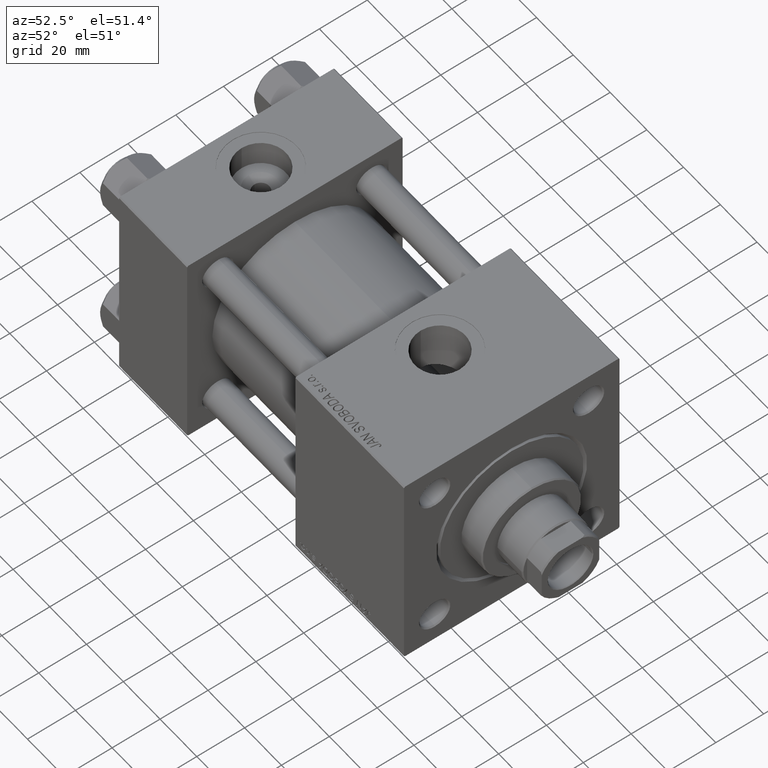
[diagram: clean part render]
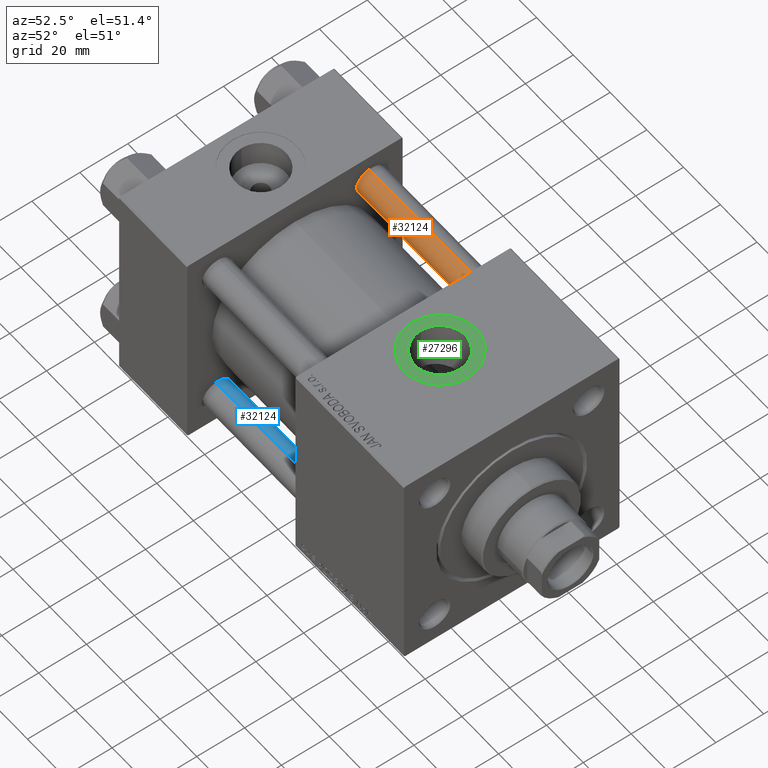
[diagram: same view with three faces highlighted in distinct colors, each labeled with its STEP entity id]
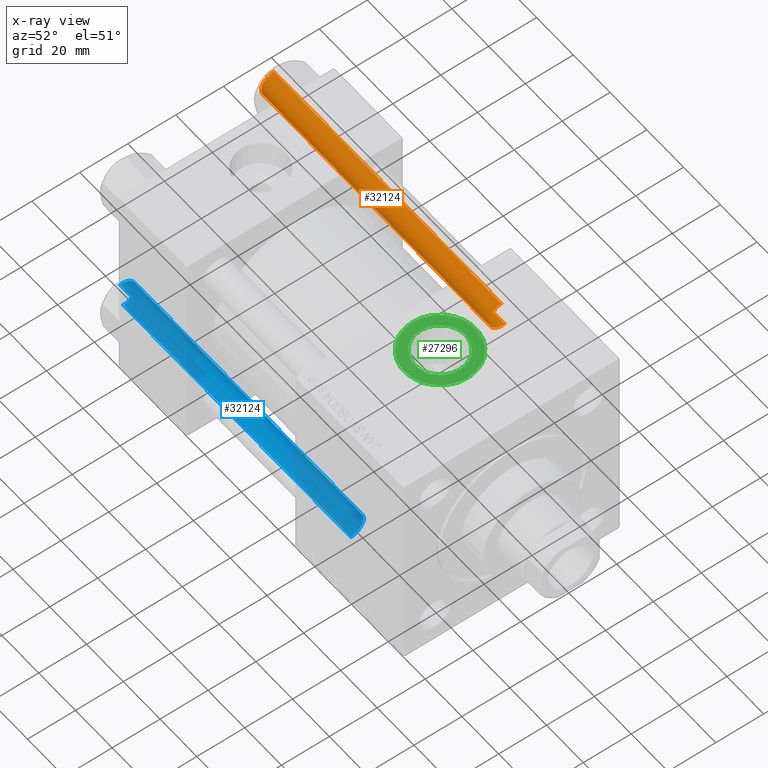
[diagram: x-ray of the same camera — body ghosted, the three highlighted faces saturated]
A machine part, auxiliary view with three faces highlighted in distinct colors.
The next image is the same camera in x-ray (body ghosted, the three faces saturated) — at least one of them is partly hidden behind the body in this view.
Their STEP definitions:

[orange] entity #32124 — the highlighted cylindrical surface (edge-blend (fillet) strip) has radius 6 mm, axis along (-1, 0, 0).
#3889 = CARTESIAN_POINT ( 'NONE',  ( 6.000000000000000888, 7.347880794884120722E-16, 125.0000000000000000 ) ) ;
#3957 = FACE_OUTER_BOUND ( 'NONE', #28924, .T. ) ;
#4647 = CARTESIAN_POINT ( 'NONE',  ( -6.000000000000000888, 0.000000000000000000, 0.4999999999999865663 ) ) ;
#4950 = VERTEX_POINT ( 'NONE', #28180 ) ;
#8040 = ORIENTED_EDGE ( 'NONE', *, *, #19581, .T. ) ;
#8315 = VERTEX_POINT ( 'NONE', #4647 ) ;
#9021 = DIRECTION ( 'NONE',  ( -0.000000000000000000, -0.000000000000000000, 1.000000000000000000 ) ) ;
#9540 = DIRECTION ( 'NONE',  ( 1.000000000000000000, 0.000000000000000000, 0.000000000000000000 ) ) ;
#10227 = CARTESIAN_POINT ( 'NONE',  ( 6.000000000000000888, 7.347880794884120722E-16, 124.5000000000000000 ) ) ;
#12302 = LINE ( 'NONE', #3889, #45134 ) ;
#13304 = EDGE_CURVE ( 'NONE', #22390, #4950, #28891, .T. ) ;
#16550 = AXIS2_PLACEMENT_3D ( 'NONE', #37396, #9021, #9540 ) ;
#19581 = EDGE_CURVE ( 'NONE', #8315, #32826, #24945, .T. ) ;
#20001 = DIRECTION ( 'NONE',  ( -1.000000000000000000, 0.000000000000000000, 0.000000000000000000 ) ) ;
#20315 = DIRECTION ( 'NONE',  ( 1.000000000000000000, 0.000000000000000000, 0.000000000000000000 ) ) ;
#22390 = VERTEX_POINT ( 'NONE', #10227 ) ;
#22817 = CARTESIAN_POINT ( 'NONE',  ( -6.000000000000000888, 0.000000000000000000, 125.0000000000000000 ) ) ;
#24945 = CIRCLE ( 'NONE', #16550, 6.000000000000000888 ) ;
#28180 = CARTESIAN_POINT ( 'NONE',  ( -6.000000000000000888, 0.000000000000000000, 124.5000000000000000 ) ) ;
#28891 = CIRCLE ( 'NONE', #33101, 6.000000000000000888 ) ;
#28924 = EDGE_LOOP ( 'NONE', ( #47751, #44039, #34297, #8040 ) ) ;
#29401 = EDGE_CURVE ( 'NONE', #4950, #8315, #30708, .T. ) ;
#30708 = LINE ( 'NONE', #22817, #34786 ) ;
#31761 = DIRECTION ( 'NONE',  ( -0.000000000000000000, -0.000000000000000000, -1.000000000000000000 ) ) ;
#32085 = CARTESIAN_POINT ( 'NONE',  ( 6.000000000000000888, 7.347880794884120722E-16, 0.4999999999999865663 ) ) ;
#32124 = ADVANCED_FACE ( 'NONE', ( #3957 ), #44680, .T. ) ;
#32664 = DIRECTION ( 'NONE',  ( 0.000000000000000000, 0.000000000000000000, -1.000000000000000000 ) ) ;
#32826 = VERTEX_POINT ( 'NONE', #32085 ) ;
#33101 = AXIS2_PLACEMENT_3D ( 'NONE', #40273, #32664, #20315 ) ;
#34036 = AXIS2_PLACEMENT_3D ( 'NONE', #40747, #49152, #20001 ) ;
#34297 = ORIENTED_EDGE ( 'NONE', *, *, #29401, .T. ) ;
#34786 = VECTOR ( 'NONE', #43042, 1000.000000000000000 ) ;
#37396 = CARTESIAN_POINT ( 'NONE',  ( 0.000000000000000000, 0.000000000000000000, 0.4999999999999865663 ) ) ;
#40273 = CARTESIAN_POINT ( 'NONE',  ( 0.000000000000000000, 0.000000000000000000, 124.5000000000000000 ) ) ;
#40747 = CARTESIAN_POINT ( 'NONE',  ( 0.000000000000000000, 0.000000000000000000, 125.0000000000000000 ) ) ;
#40952 = EDGE_CURVE ( 'NONE', #22390, #32826, #12302, .T. ) ;
#43042 = DIRECTION ( 'NONE',  ( -0.000000000000000000, -0.000000000000000000, -1.000000000000000000 ) ) ;
#44039 = ORIENTED_EDGE ( 'NONE', *, *, #13304, .T. ) ;
#44680 = CYLINDRICAL_SURFACE ( 'NONE', #34036, 6.000000000000000888 ) ;
#45134 = VECTOR ( 'NONE', #31761, 1000.000000000000000 ) ;
#47751 = ORIENTED_EDGE ( 'NONE', *, *, #40952, .F. ) ;
#49152 = DIRECTION ( 'NONE',  ( -0.000000000000000000, -0.000000000000000000, -1.000000000000000000 ) ) ;

[blue] entity #32124 — the highlighted cylindrical surface (edge-blend (fillet) strip) has radius 6 mm, axis along (-1, -0, -0).
#3889 = CARTESIAN_POINT ( 'NONE',  ( 6.000000000000000888, 7.347880794884120722E-16, 125.0000000000000000 ) ) ;
#3957 = FACE_OUTER_BOUND ( 'NONE', #28924, .T. ) ;
#4647 = CARTESIAN_POINT ( 'NONE',  ( -6.000000000000000888, 0.000000000000000000, 0.4999999999999865663 ) ) ;
#4950 = VERTEX_POINT ( 'NONE', #28180 ) ;
#8040 = ORIENTED_EDGE ( 'NONE', *, *, #19581, .T. ) ;
#8315 = VERTEX_POINT ( 'NONE', #4647 ) ;
#9021 = DIRECTION ( 'NONE',  ( -0.000000000000000000, -0.000000000000000000, 1.000000000000000000 ) ) ;
#9540 = DIRECTION ( 'NONE',  ( 1.000000000000000000, 0.000000000000000000, 0.000000000000000000 ) ) ;
#10227 = CARTESIAN_POINT ( 'NONE',  ( 6.000000000000000888, 7.347880794884120722E-16, 124.5000000000000000 ) ) ;
#12302 = LINE ( 'NONE', #3889, #45134 ) ;
#13304 = EDGE_CURVE ( 'NONE', #22390, #4950, #28891, .T. ) ;
#16550 = AXIS2_PLACEMENT_3D ( 'NONE', #37396, #9021, #9540 ) ;
#19581 = EDGE_CURVE ( 'NONE', #8315, #32826, #24945, .T. ) ;
#20001 = DIRECTION ( 'NONE',  ( -1.000000000000000000, 0.000000000000000000, 0.000000000000000000 ) ) ;
#20315 = DIRECTION ( 'NONE',  ( 1.000000000000000000, 0.000000000000000000, 0.000000000000000000 ) ) ;
#22390 = VERTEX_POINT ( 'NONE', #10227 ) ;
#22817 = CARTESIAN_POINT ( 'NONE',  ( -6.000000000000000888, 0.000000000000000000, 125.0000000000000000 ) ) ;
#24945 = CIRCLE ( 'NONE', #16550, 6.000000000000000888 ) ;
#28180 = CARTESIAN_POINT ( 'NONE',  ( -6.000000000000000888, 0.000000000000000000, 124.5000000000000000 ) ) ;
#28891 = CIRCLE ( 'NONE', #33101, 6.000000000000000888 ) ;
#28924 = EDGE_LOOP ( 'NONE', ( #47751, #44039, #34297, #8040 ) ) ;
#29401 = EDGE_CURVE ( 'NONE', #4950, #8315, #30708, .T. ) ;
#30708 = LINE ( 'NONE', #22817, #34786 ) ;
#31761 = DIRECTION ( 'NONE',  ( -0.000000000000000000, -0.000000000000000000, -1.000000000000000000 ) ) ;
#32085 = CARTESIAN_POINT ( 'NONE',  ( 6.000000000000000888, 7.347880794884120722E-16, 0.4999999999999865663 ) ) ;
#32124 = ADVANCED_FACE ( 'NONE', ( #3957 ), #44680, .T. ) ;
#32664 = DIRECTION ( 'NONE',  ( 0.000000000000000000, 0.000000000000000000, -1.000000000000000000 ) ) ;
#32826 = VERTEX_POINT ( 'NONE', #32085 ) ;
#33101 = AXIS2_PLACEMENT_3D ( 'NONE', #40273, #32664, #20315 ) ;
#34036 = AXIS2_PLACEMENT_3D ( 'NONE', #40747, #49152, #20001 ) ;
#34297 = ORIENTED_EDGE ( 'NONE', *, *, #29401, .T. ) ;
#34786 = VECTOR ( 'NONE', #43042, 1000.000000000000000 ) ;
#37396 = CARTESIAN_POINT ( 'NONE',  ( 0.000000000000000000, 0.000000000000000000, 0.4999999999999865663 ) ) ;
#40273 = CARTESIAN_POINT ( 'NONE',  ( 0.000000000000000000, 0.000000000000000000, 124.5000000000000000 ) ) ;
#40747 = CARTESIAN_POINT ( 'NONE',  ( 0.000000000000000000, 0.000000000000000000, 125.0000000000000000 ) ) ;
#40952 = EDGE_CURVE ( 'NONE', #22390, #32826, #12302, .T. ) ;
#43042 = DIRECTION ( 'NONE',  ( -0.000000000000000000, -0.000000000000000000, -1.000000000000000000 ) ) ;
#44039 = ORIENTED_EDGE ( 'NONE', *, *, #13304, .T. ) ;
#44680 = CYLINDRICAL_SURFACE ( 'NONE', #34036, 6.000000000000000888 ) ;
#45134 = VECTOR ( 'NONE', #31761, 1000.000000000000000 ) ;
#47751 = ORIENTED_EDGE ( 'NONE', *, *, #40952, .F. ) ;
#49152 = DIRECTION ( 'NONE',  ( -0.000000000000000000, -0.000000000000000000, -1.000000000000000000 ) ) ;

[green] entity #27296 — the highlighted planar face has unit normal (0, 0, 1).
#3120 = AXIS2_PLACEMENT_3D ( 'NONE', #19218, #19471, #15274 ) ;
#3444 = AXIS2_PLACEMENT_3D ( 'NONE', #24320, #8569, #40615 ) ;
#5046 = DIRECTION ( 'NONE',  ( 1.000000000000000000, 0.000000000000000000, 0.000000000000000000 ) ) ;
#8569 = DIRECTION ( 'NONE',  ( 0.000000000000000000, 0.000000000000000000, 1.000000000000000000 ) ) ;
#10782 = EDGE_LOOP ( 'NONE', ( #39711, #39207 ) ) ;
#12827 = DIRECTION ( 'NONE',  ( 1.000000000000000000, 0.000000000000000000, -0.000000000000000000 ) ) ;
#15274 = DIRECTION ( 'NONE',  ( 1.000000000000000000, 0.000000000000000000, 0.000000000000000000 ) ) ;
#15661 = CARTESIAN_POINT ( 'NONE',  ( 100.9999999999999858, -5.101923705186196422E-15, 44.79999999999999005 ) ) ;
#15693 = ORIENTED_EDGE ( 'NONE', *, *, #27854, .T. ) ;
#15820 = VERTEX_POINT ( 'NONE', #15661 ) ;
#15989 = FACE_BOUND ( 'NONE', #33978, .T. ) ;
#16249 = DIRECTION ( 'NONE',  ( 0.000000000000000000, 0.000000000000000000, 1.000000000000000000 ) ) ;
#16490 = CARTESIAN_POINT ( 'NONE',  ( 126.4800000000000040, -5.655464058400802100E-15, 44.79999999999999005 ) ) ;
#17041 = PLANE ( 'NONE',  #33893 ) ;
#17568 = VERTEX_POINT ( 'NONE', #16490 ) ;
#19218 = CARTESIAN_POINT ( 'NONE',  ( 116.0000000000000000, -6.938893903907227589E-15, 44.79999999999999005 ) ) ;
#19471 = DIRECTION ( 'NONE',  ( -0.000000000000000000, -0.000000000000000000, -1.000000000000000000 ) ) ;
#23103 = CARTESIAN_POINT ( 'NONE',  ( 131.0000000000000000, -6.938893903907227589E-15, 44.79999999999999005 ) ) ;
#24320 = CARTESIAN_POINT ( 'NONE',  ( 116.0000000000000000, -6.938893903907227589E-15, 44.79999999999999005 ) ) ;
#25774 = CIRCLE ( 'NONE', #3120, 10.48000000000000398 ) ;
#26092 = CIRCLE ( 'NONE', #3444, 15.00000000000000000 ) ;
#27296 = ADVANCED_FACE ( 'NONE', ( #15989, #28858 ), #17041, .T. ) ;
#27854 = EDGE_CURVE ( 'NONE', #51209, #17568, #28024, .T. ) ;
#28024 = CIRCLE ( 'NONE', #49038, 10.48000000000000398 ) ;
#28070 = CARTESIAN_POINT ( 'NONE',  ( 116.0000000000000000, -6.938893903907227589E-15, 44.79999999999999005 ) ) ;
#28858 = FACE_OUTER_BOUND ( 'NONE', #10782, .T. ) ;
#32080 = DIRECTION ( 'NONE',  ( 1.000000000000000000, 0.000000000000000000, 0.000000000000000000 ) ) ;
#33893 = AXIS2_PLACEMENT_3D ( 'NONE', #28070, #16249, #12827 ) ;
#33978 = EDGE_LOOP ( 'NONE', ( #15693, #34101 ) ) ;
#34101 = ORIENTED_EDGE ( 'NONE', *, *, #39667, .T. ) ;
#39055 = EDGE_CURVE ( 'NONE', #40774, #15820, #44223, .T. ) ;
#39207 = ORIENTED_EDGE ( 'NONE', *, *, #49483, .T. ) ;
#39667 = EDGE_CURVE ( 'NONE', #17568, #51209, #25774, .T. ) ;
#39703 = DIRECTION ( 'NONE',  ( -0.000000000000000000, -0.000000000000000000, -1.000000000000000000 ) ) ;
#39711 = ORIENTED_EDGE ( 'NONE', *, *, #39055, .T. ) ;
#40615 = DIRECTION ( 'NONE',  ( 1.000000000000000000, 0.000000000000000000, 0.000000000000000000 ) ) ;
#40774 = VERTEX_POINT ( 'NONE', #23103 ) ;
#43357 = CARTESIAN_POINT ( 'NONE',  ( 105.5199999999999960, -6.938893903907227589E-15, 44.79999999999999005 ) ) ;
#44223 = CIRCLE ( 'NONE', #51782, 15.00000000000000000 ) ;
#45249 = CARTESIAN_POINT ( 'NONE',  ( 116.0000000000000000, -6.938893903907227589E-15, 44.79999999999999005 ) ) ;
#46354 = CARTESIAN_POINT ( 'NONE',  ( 116.0000000000000000, -6.938893903907227589E-15, 44.79999999999999005 ) ) ;
#48652 = DIRECTION ( 'NONE',  ( 0.000000000000000000, 0.000000000000000000, 1.000000000000000000 ) ) ;
#49038 = AXIS2_PLACEMENT_3D ( 'NONE', #46354, #39703, #32080 ) ;
#49483 = EDGE_CURVE ( 'NONE', #15820, #40774, #26092, .T. ) ;
#51209 = VERTEX_POINT ( 'NONE', #43357 ) ;
#51782 = AXIS2_PLACEMENT_3D ( 'NONE', #45249, #48652, #5046 ) ;